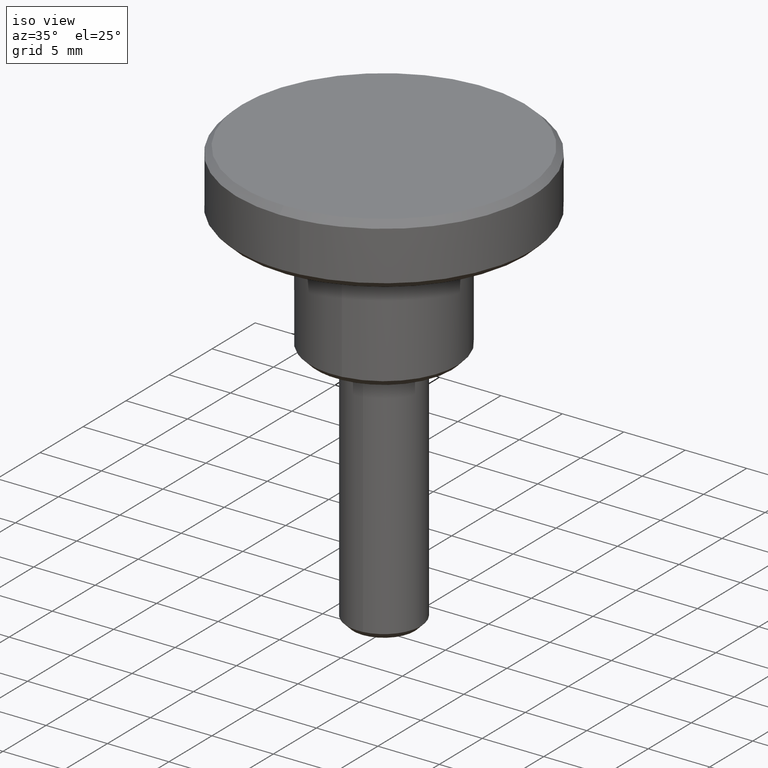
[diagram: clean part render]
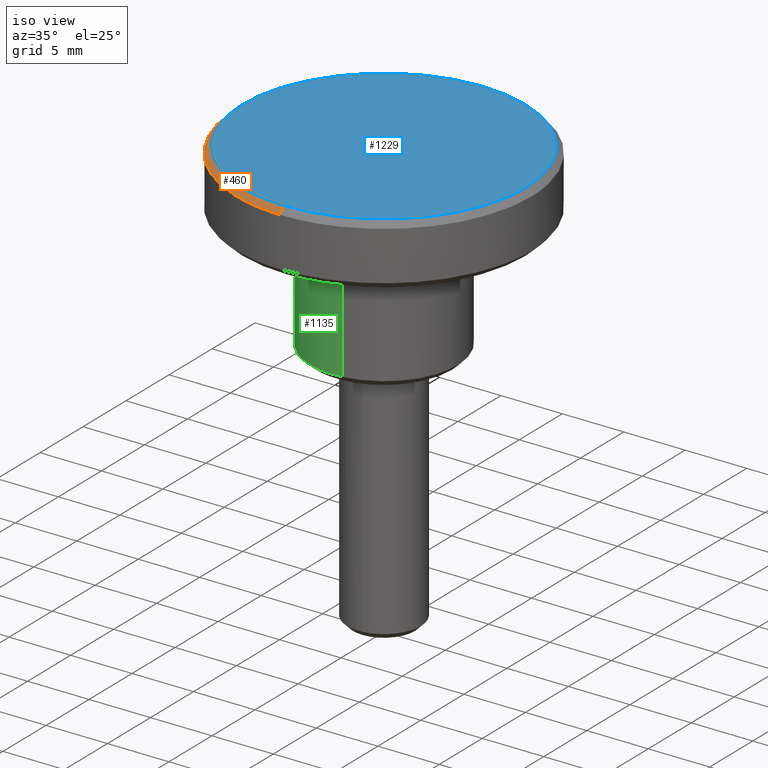
[diagram: same view with three faces highlighted in distinct colors, each labeled with its STEP entity id]
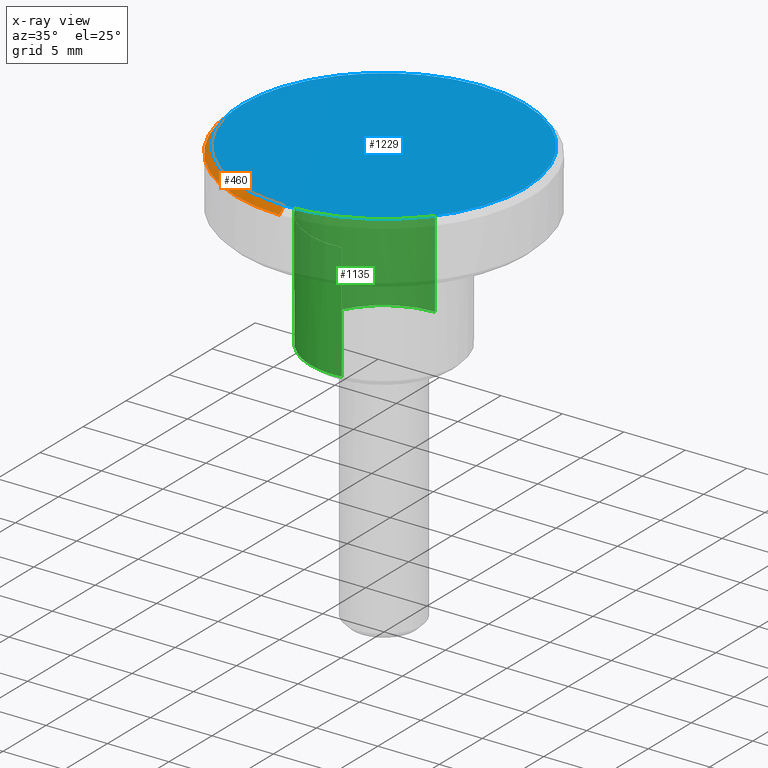
[diagram: x-ray of the same camera — body ghosted, the three highlighted faces saturated]
A machine part, iso view with three faces highlighted in distinct colors.
The next image is the same camera in x-ray (body ghosted, the three faces saturated) — at least one of them is partly hidden behind the body in this view.
Their STEP definitions:

[orange] entity #460 — the highlighted face is a freeform B-spline surface patch.
#271=CARTESIAN_POINT('',(-11.690617838139930,-2.707296541319701,14.499999999996790));
#272=VERTEX_POINT('',#271);
#288=CARTESIAN_POINT('',(-11.203508761551619,-2.594492518757125,14.999999999997771));
#289=VERTEX_POINT('',#288);
#290=CARTESIAN_POINT('',(-11.203508761551619,-2.594492518757125,14.999999999997771));
#291=CARTESIAN_POINT('',(-11.690617838139930,-2.707296541319701,14.499999999996790));
#292=QUASI_UNIFORM_CURVE('',1,(#290,#291),.UNSPECIFIED.,.F.,.U.);
#293=EDGE_CURVE('',#289,#272,#292,.T.);
#327=CARTESIAN_POINT('',(-0.100355158268705,-11.499562115242711,14.999999999994900));
#328=VERTEX_POINT('',#327);
#344=CARTESIAN_POINT('',(-0.104718426021248,-11.999543076775240,14.499999999994460));
#345=VERTEX_POINT('',#344);
#346=CARTESIAN_POINT('',(-0.100355158268705,-11.499562115242711,14.999999999994900));
#347=CARTESIAN_POINT('',(-0.104718426021248,-11.999543076775240,14.499999999994460));
#348=QUASI_UNIFORM_CURVE('',1,(#346,#347),.UNSPECIFIED.,.F.,.U.);
#349=EDGE_CURVE('',#328,#345,#348,.T.);
#416=CARTESIAN_POINT('',(-0.100246076537570,-11.487062591199610,15.012499999999999));
#417=CARTESIAN_POINT('',(-9.149637732336018,-11.408089746632660,15.012500000000003));
#418=CARTESIAN_POINT('',(-11.191331034639012,-2.591672418174083,15.012500000000003));
#419=CARTESIAN_POINT('',(-0.104830234716560,-12.012355088909320,14.487187499999999));
#420=CARTESIAN_POINT('',(-9.568042004045996,-11.929770890922430,14.487187500000001));
#421=CARTESIAN_POINT('',(-11.703100008230697,-2.710187144369708,14.487187499999997));
#429=(BOUNDED_SURFACE()B_SPLINE_SURFACE(2,1,((#416,#419),(#417,#420),(#418,#421)),.UNSPECIFIED.,.F.,.F.,.U.)B_SPLINE_SURFACE_WITH_KNOTS((3,3),(2,2),(0.0,16.645809910381690),(0.0,1.0),.UNSPECIFIED.)GEOMETRIC_REPRESENTATION_ITEM()RATIONAL_B_SPLINE_SURFACE(((1.0,1.0),(0.753969696196700,0.753969696196700),(0.921270302782944,0.921270302782944)))REPRESENTATION_ITEM('')SURFACE());
#430=CARTESIAN_POINT('',(-0.104718426021248,-11.999543076775240,14.499999999994467));
#431=CARTESIAN_POINT('',(-9.557837021778731,-11.917046960510007,14.500000000000000));
#432=CARTESIAN_POINT('',(-11.690617838139929,-2.707296541319702,14.499999999996792));
#440=(BOUNDED_CURVE()B_SPLINE_CURVE(2,(#430,#431,#432),.UNSPECIFIED.,.F.,.U.)B_SPLINE_CURVE_WITH_KNOTS((3,3),(0.751539894336182,0.961422971783848),.UNSPECIFIED.)CURVE()GEOMETRIC_REPRESENTATION_ITEM()RATIONAL_B_SPLINE_CURVE((0.996414028097640,0.753549905437658,0.923556557441552))REPRESENTATION_ITEM(''));
#441=EDGE_CURVE('',#345,#272,#440,.T.);
#442=ORIENTED_EDGE('',*,*,#441,.F.);
#443=ORIENTED_EDGE('',*,*,#349,.F.);
#444=CARTESIAN_POINT('',(-11.203508761551614,-2.594492518757126,14.999999999997774));
#445=CARTESIAN_POINT('',(-9.159593812549700,-11.420503337157896,14.999999999999993));
#446=CARTESIAN_POINT('',(-0.100355158268705,-11.499562115242716,14.999999999994902));
#454=(BOUNDED_CURVE()B_SPLINE_CURVE(2,(#444,#445,#446),.UNSPECIFIED.,.F.,.U.)B_SPLINE_CURVE_WITH_KNOTS((3,3),(0.538577028215936,0.748460105663868),.UNSPECIFIED.)CURVE()GEOMETRIC_REPRESENTATION_ITEM()RATIONAL_B_SPLINE_CURVE((0.923556557441902,0.753549905437367,0.996414028097755))REPRESENTATION_ITEM(''));
#455=EDGE_CURVE('',#289,#328,#454,.T.);
#456=ORIENTED_EDGE('',*,*,#455,.F.);
#457=ORIENTED_EDGE('',*,*,#293,.T.);
#458=EDGE_LOOP('',(#442,#443,#456,#457));
#459=FACE_OUTER_BOUND('',#458,.T.);
#460=ADVANCED_FACE('',(#459),#429,.T.);

[blue] entity #1229 — the highlighted face is a freeform B-spline surface patch.
#288=CARTESIAN_POINT('',(-11.203508761551619,-2.594492518757125,14.999999999997771));
#289=VERTEX_POINT('',#288);
#295=CARTESIAN_POINT('',(-11.500000000000000,0.0,15.0));
#296=VERTEX_POINT('',#295);
#297=CARTESIAN_POINT('',(-11.500000000000000,0.0,15.0));
#298=CARTESIAN_POINT('',(-11.500000000000002,-1.314187347836439,15.0));
#299=CARTESIAN_POINT('',(-11.203508761551621,-2.594492518757125,14.999999999997772));
#307=(BOUNDED_CURVE()B_SPLINE_CURVE(2,(#297,#298,#299),.UNSPECIFIED.,.F.,.U.)B_SPLINE_CURVE_WITH_KNOTS((3,3),(0.500000000000000,0.538577028215936),.UNSPECIFIED.)CURVE()GEOMETRIC_REPRESENTATION_ITEM()RATIONAL_B_SPLINE_CURVE((1.0,0.954804200134309,0.923556557441902))REPRESENTATION_ITEM(''));
#308=EDGE_CURVE('',#296,#289,#307,.T.);
#310=CARTESIAN_POINT('',(11.500000000000000,0.0,15.0));
#311=VERTEX_POINT('',#310);
#312=CARTESIAN_POINT('',(11.500000000000000,0.0,15.0));
#313=CARTESIAN_POINT('',(11.500000000000000,11.500000000000000,14.999999999999995));
#314=CARTESIAN_POINT('',(0.0,11.500000000000000,15.0));
#315=CARTESIAN_POINT('',(-11.500000000000000,11.500000000000000,14.999999999999995));
#316=CARTESIAN_POINT('',(-11.500000000000000,0.0,15.0));
#324=(BOUNDED_CURVE()B_SPLINE_CURVE(2,(#312,#313,#314,#315,#316),.UNSPECIFIED.,.F.,.U.)B_SPLINE_CURVE_WITH_KNOTS((3,2,3),(0.0,0.250000000000000,0.500000000000000),.UNSPECIFIED.)CURVE()GEOMETRIC_REPRESENTATION_ITEM()RATIONAL_B_SPLINE_CURVE((1.0,0.707106781186548,1.0,0.707106781186548,1.0))REPRESENTATION_ITEM(''));
#325=EDGE_CURVE('',#311,#296,#324,.T.);
#327=CARTESIAN_POINT('',(-0.100355158268705,-11.499562115242711,14.999999999994900));
#328=VERTEX_POINT('',#327);
#329=CARTESIAN_POINT('',(-0.100355158268705,-11.499562115242719,14.999999999994898));
#330=CARTESIAN_POINT('',(-0.050178534475431,-11.500000000000002,15.000000000000004));
#331=CARTESIAN_POINT('',(0.0,-11.500000000000000,15.0));
#332=CARTESIAN_POINT('',(11.500000000000000,-11.500000000000000,14.999999999999995));
#333=CARTESIAN_POINT('',(11.500000000000000,0.0,15.0));
#341=(BOUNDED_CURVE()B_SPLINE_CURVE(2,(#329,#330,#331,#332,#333),.UNSPECIFIED.,.F.,.U.)B_SPLINE_CURVE_WITH_KNOTS((3,2,3),(0.748460105663868,0.750000000000000,1.0),.UNSPECIFIED.)CURVE()GEOMETRIC_REPRESENTATION_ITEM()RATIONAL_B_SPLINE_CURVE((0.996414028097757,0.998195901565031,1.0,0.707106781186548,1.0))REPRESENTATION_ITEM(''));
#342=EDGE_CURVE('',#328,#311,#341,.T.);
#444=CARTESIAN_POINT('',(-11.203508761551614,-2.594492518757126,14.999999999997774));
#445=CARTESIAN_POINT('',(-9.159593812549700,-11.420503337157896,14.999999999999993));
#446=CARTESIAN_POINT('',(-0.100355158268705,-11.499562115242716,14.999999999994902));
#454=(BOUNDED_CURVE()B_SPLINE_CURVE(2,(#444,#445,#446),.UNSPECIFIED.,.F.,.U.)B_SPLINE_CURVE_WITH_KNOTS((3,3),(0.538577028215936,0.748460105663868),.UNSPECIFIED.)CURVE()GEOMETRIC_REPRESENTATION_ITEM()RATIONAL_B_SPLINE_CURVE((0.923556557441902,0.753549905437367,0.996414028097755))REPRESENTATION_ITEM(''));
#455=EDGE_CURVE('',#289,#328,#454,.T.);
#1218=CARTESIAN_POINT('',(-12.648849955421539,-12.648390504168120,15.0));
#1219=CARTESIAN_POINT('',(12.648850572329611,-12.648390504168120,15.0));
#1220=CARTESIAN_POINT('',(-12.648849955421539,12.648828714536270,15.0));
#1221=CARTESIAN_POINT('',(12.648850572329611,12.648828714536270,15.0));
#1222=B_SPLINE_SURFACE_WITH_KNOTS('',1,1,((#1218,#1220),(#1219,#1221)),.UNSPECIFIED.,.F.,.F.,.U.,(2,2),(2,2),(0.0,25.297700527751150),(0.0,25.297219218704392),.UNSPECIFIED.);
#1223=ORIENTED_EDGE('',*,*,#325,.T.);
#1224=ORIENTED_EDGE('',*,*,#308,.T.);
#1225=ORIENTED_EDGE('',*,*,#455,.T.);
#1226=ORIENTED_EDGE('',*,*,#342,.T.);
#1227=EDGE_LOOP('',(#1223,#1224,#1225,#1226));
#1228=FACE_OUTER_BOUND('',#1227,.T.);
#1229=ADVANCED_FACE('',(#1228),#1222,.T.);

[green] entity #1135 — the highlighted face is a freeform B-spline surface patch.
#699=CARTESIAN_POINT('',(-2.425292591960359,-5.487982857427445,0.500000000002887));
#700=VERTEX_POINT('',#699);
#701=CARTESIAN_POINT('',(0.744762001883350,-5.953598034845316,0.499999999999997));
#702=VERTEX_POINT('',#701);
#703=CARTESIAN_POINT('',(-2.425292591960358,-5.487982857427446,0.500000000002887));
#704=CARTESIAN_POINT('',(-1.266693703547750,-6.000000000000001,0.499999999999945));
#705=CARTESIAN_POINT('',(0.0,-6.0,0.499999999999945));
#706=CARTESIAN_POINT('',(0.373826524722945,-5.999999999999999,0.499999999999945));
#707=CARTESIAN_POINT('',(0.744762001883350,-5.953598034845316,0.499999999999997));
#715=(BOUNDED_CURVE()B_SPLINE_CURVE(2,(#703,#704,#705,#706,#707),.UNSPECIFIED.,.F.,.U.)B_SPLINE_CURVE_WITH_KNOTS((3,2,3),(0.181361578458117,0.250000000000000,0.271473758710190),.UNSPECIFIED.)CURVE()GEOMETRIC_REPRESENTATION_ITEM()RATIONAL_B_SPLINE_CURVE((0.883326595749966,0.919585087121293,1.0,0.974841926765397,0.954005760684819))REPRESENTATION_ITEM(''));
#716=EDGE_CURVE('',#700,#702,#715,.T.);
#759=CARTESIAN_POINT('',(-0.052358838030565,5.999771541657181,0.499999999999923));
#760=VERTEX_POINT('',#759);
#817=CARTESIAN_POINT('',(-6.0,0.0,0.499999999999945));
#818=VERTEX_POINT('',#817);
#819=CARTESIAN_POINT('',(-6.0,0.0,0.499999999999945));
#820=CARTESIAN_POINT('',(-6.0,-3.908220015500048,0.499999999999945));
#821=CARTESIAN_POINT('',(-2.425292591960359,-5.487982857427445,0.500000000002887));
#829=(BOUNDED_CURVE()B_SPLINE_CURVE(2,(#819,#820,#821),.UNSPECIFIED.,.F.,.U.)B_SPLINE_CURVE_WITH_KNOTS((3,3),(0.0,0.181361578458117),.UNSPECIFIED.)CURVE()GEOMETRIC_REPRESENTATION_ITEM()RATIONAL_B_SPLINE_CURVE((1.0,0.787521694065255,0.883326595749966))REPRESENTATION_ITEM(''));
#830=EDGE_CURVE('',#818,#700,#829,.T.);
#832=CARTESIAN_POINT('',(-0.052358838030565,5.999771541657181,0.499999999999923));
#833=CARTESIAN_POINT('',(-6.0,5.947867635299921,0.499999999999945));
#834=CARTESIAN_POINT('',(-6.0,0.0,0.499999999999945));
#842=(BOUNDED_CURVE()B_SPLINE_CURVE(2,(#832,#833,#834),.UNSPECIFIED.,.F.,.U.)B_SPLINE_CURVE_WITH_KNOTS((3,3),(0.751539883326828,1.0),.UNSPECIFIED.)CURVE()GEOMETRIC_REPRESENTATION_ITEM()RATIONAL_B_SPLINE_CURVE((0.996414053576372,0.708910866723315,1.0))REPRESENTATION_ITEM(''));
#843=EDGE_CURVE('',#760,#818,#842,.T.);
#1029=CARTESIAN_POINT('',(-0.052357524053603,5.999771553123678,10.0));
#1030=VERTEX_POINT('',#1029);
#1031=CARTESIAN_POINT('',(-0.052358838030565,5.999771541657181,0.499999999999923));
#1032=CARTESIAN_POINT('',(-0.052357524053603,5.999771553123678,10.0));
#1033=QUASI_UNIFORM_CURVE('',1,(#1031,#1032),.UNSPECIFIED.,.F.,.U.);
#1034=EDGE_CURVE('',#760,#1030,#1033,.T.);
#1053=CARTESIAN_POINT('',(0.744758190612340,-5.953598511607736,10.0));
#1054=VERTEX_POINT('',#1053);
#1068=CARTESIAN_POINT('',(0.744762001883350,-5.953598034845316,0.499999999999997));
#1069=CARTESIAN_POINT('',(0.744758190612340,-5.953598511607736,10.0));
#1070=QUASI_UNIFORM_CURVE('',1,(#1068,#1069),.UNSPECIFIED.,.F.,.U.);
#1071=EDGE_CURVE('',#702,#1054,#1070,.T.);
#1076=CARTESIAN_POINT('',(-0.052359212990243,5.999771538385026,0.262499999999943));
#1077=CARTESIAN_POINT('',(-6.052130751375269,5.947412325394783,0.262499999999943));
#1078=CARTESIAN_POINT('',(-5.999771538385026,-0.052359212990243,0.262499999999943));
#1079=CARTESIAN_POINT('',(-5.947412325394783,-6.052130751375269,0.262499999999943));
#1080=CARTESIAN_POINT('',(0.052359212990243,-5.999771538385026,0.262499999999943));
#1081=CARTESIAN_POINT('',(0.399900953749042,-5.996738587561654,0.262499999999943));
#1082=CARTESIAN_POINT('',(0.744768012478976,-5.953597282953231,0.262499999999943));
#1083=CARTESIAN_POINT('',(-0.052359212990243,5.999771538385026,10.243437500000001));
#1084=CARTESIAN_POINT('',(-6.052130751375269,5.947412325394783,10.243437500000004));
#1085=CARTESIAN_POINT('',(-5.999771538385026,-0.052359212990243,10.243437500000001));
#1086=CARTESIAN_POINT('',(-5.947412325394783,-6.052130751375269,10.243437500000004));
#1087=CARTESIAN_POINT('',(0.052359212990243,-5.999771538385026,10.243437500000001));
#1088=CARTESIAN_POINT('',(0.399900953749042,-5.996738587561654,10.243437500000002));
#1089=CARTESIAN_POINT('',(0.744768012478976,-5.953597282953231,10.243437500000006));
#1097=(BOUNDED_SURFACE()B_SPLINE_SURFACE(2,1,((#1076,#1083),(#1077,#1084),(#1078,#1085),(#1079,#1086),(#1080,#1087),(#1081,#1088),(#1082,#1089)),.UNSPECIFIED.,.F.,.F.,.U.)B_SPLINE_SURFACE_WITH_KNOTS((3,2,2,3),(2,2),(0.0,9.941125496954278,19.882250993908560,20.677541033664902),(0.0,9.980937500000064),.UNSPECIFIED.)GEOMETRIC_REPRESENTATION_ITEM()RATIONAL_B_SPLINE_SURFACE(((1.0,1.0),(0.707106781186548,0.707106781186548),(1.0,1.0),(0.707106781186548,0.707106781186548),(1.0,1.0),(0.976568542494924,0.976568542494924),(0.956886118190660,0.956886118190660)))REPRESENTATION_ITEM('')SURFACE());
#1098=ORIENTED_EDGE('',*,*,#830,.T.);
#1099=ORIENTED_EDGE('',*,*,#716,.T.);
#1100=ORIENTED_EDGE('',*,*,#1071,.T.);
#1101=CARTESIAN_POINT('',(-6.0,0.0,10.0));
#1102=VERTEX_POINT('',#1101);
#1103=CARTESIAN_POINT('',(0.744758190612340,-5.953598511607736,10.000000000000002));
#1104=CARTESIAN_POINT('',(0.373824596780445,-6.000000000000001,10.0));
#1105=CARTESIAN_POINT('',(0.0,-6.0,10.0));
#1106=CARTESIAN_POINT('',(-6.0,-6.0,10.000000000000002));
#1107=CARTESIAN_POINT('',(-6.0,0.0,10.0));
#1115=(BOUNDED_CURVE()B_SPLINE_CURVE(2,(#1103,#1104,#1105,#1106,#1107),.UNSPECIFIED.,.F.,.U.)B_SPLINE_CURVE_WITH_KNOTS((3,2,3),(0.728526349250659,0.750000000000000,1.0),.UNSPECIFIED.)CURVE()GEOMETRIC_REPRESENTATION_ITEM()RATIONAL_B_SPLINE_CURVE((0.954005970195540,0.974842053249398,1.0,0.707106781186548,1.0))REPRESENTATION_ITEM(''));
#1116=EDGE_CURVE('',#1054,#1102,#1115,.T.);
#1117=ORIENTED_EDGE('',*,*,#1116,.T.);
#1118=CARTESIAN_POINT('',(-6.0,0.0,10.0));
#1119=CARTESIAN_POINT('',(-6.000000000000001,5.947868937959433,10.0));
#1120=CARTESIAN_POINT('',(-0.052357524053603,5.999771553123678,10.000000000000004));
#1128=(BOUNDED_CURVE()B_SPLINE_CURVE(2,(#1118,#1119,#1120),.UNSPECIFIED.,.F.,.U.)B_SPLINE_CURVE_WITH_KNOTS((3,3),(0.0,0.248460155249236),.UNSPECIFIED.)CURVE()GEOMETRIC_REPRESENTATION_ITEM()RATIONAL_B_SPLINE_CURVE((1.0,0.708910821528645,0.996414142852213))REPRESENTATION_ITEM(''));
#1129=EDGE_CURVE('',#1102,#1030,#1128,.T.);
#1130=ORIENTED_EDGE('',*,*,#1129,.T.);
#1131=ORIENTED_EDGE('',*,*,#1034,.F.);
#1132=ORIENTED_EDGE('',*,*,#843,.T.);
#1133=EDGE_LOOP('',(#1098,#1099,#1100,#1117,#1130,#1131,#1132));
#1134=FACE_OUTER_BOUND('',#1133,.T.);
#1135=ADVANCED_FACE('',(#1134),#1097,.T.);